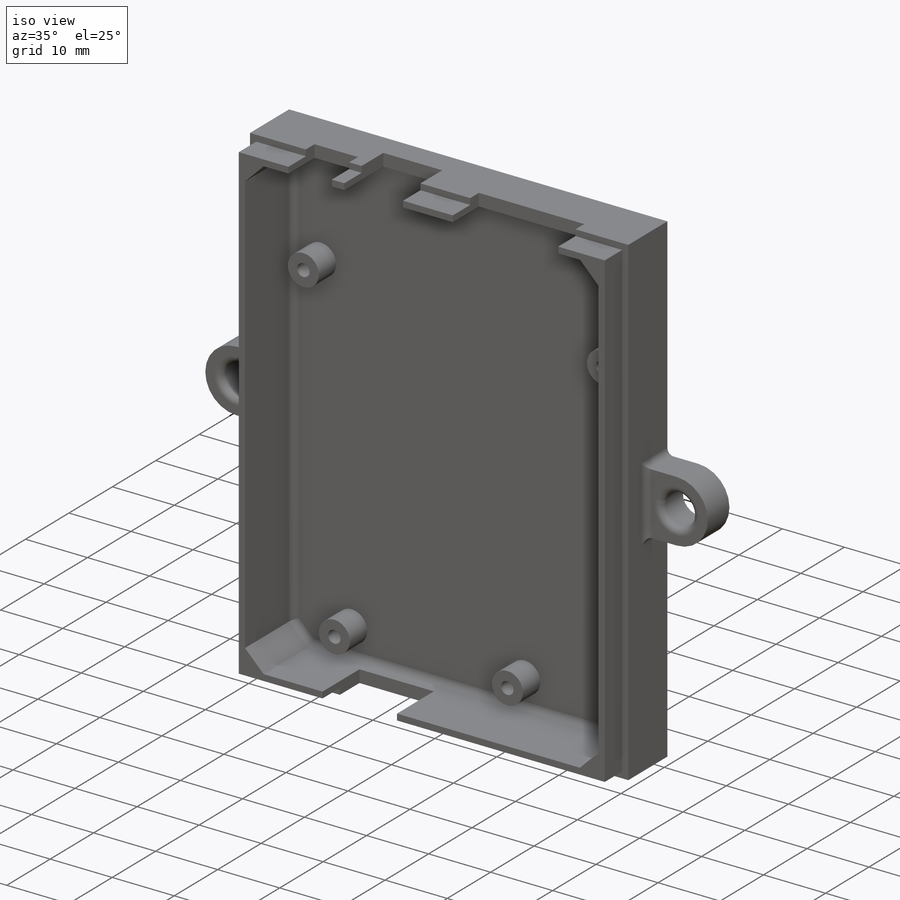
[diagram: iso view]
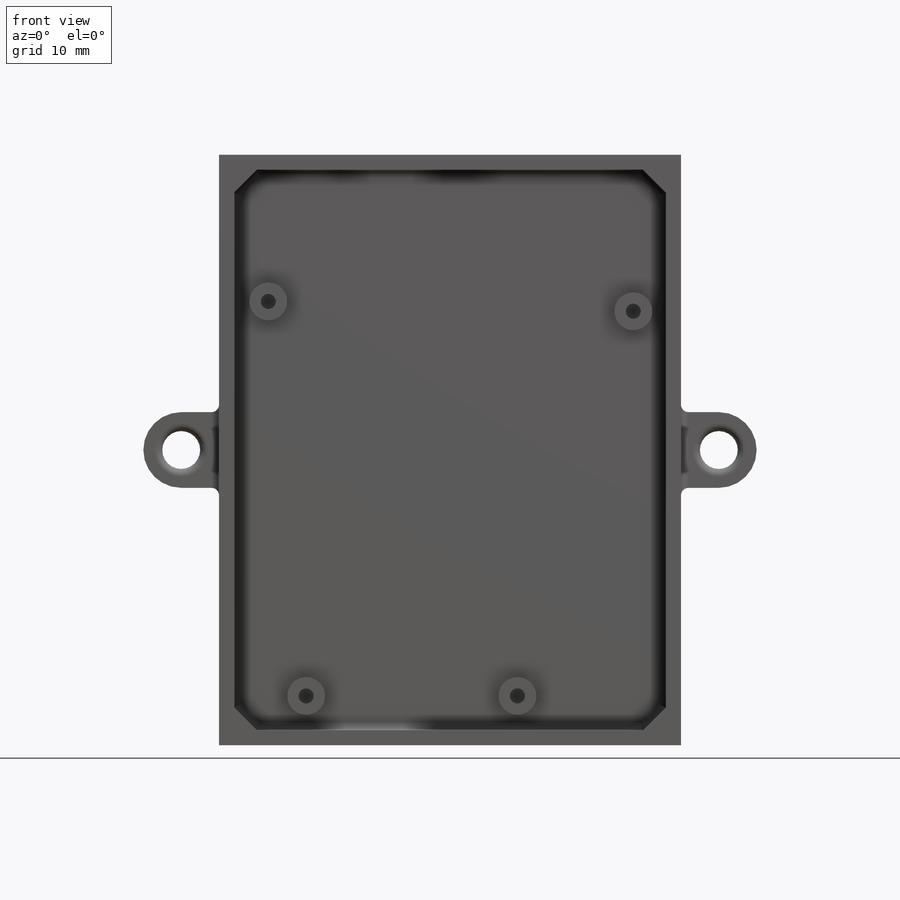
[diagram: front view]
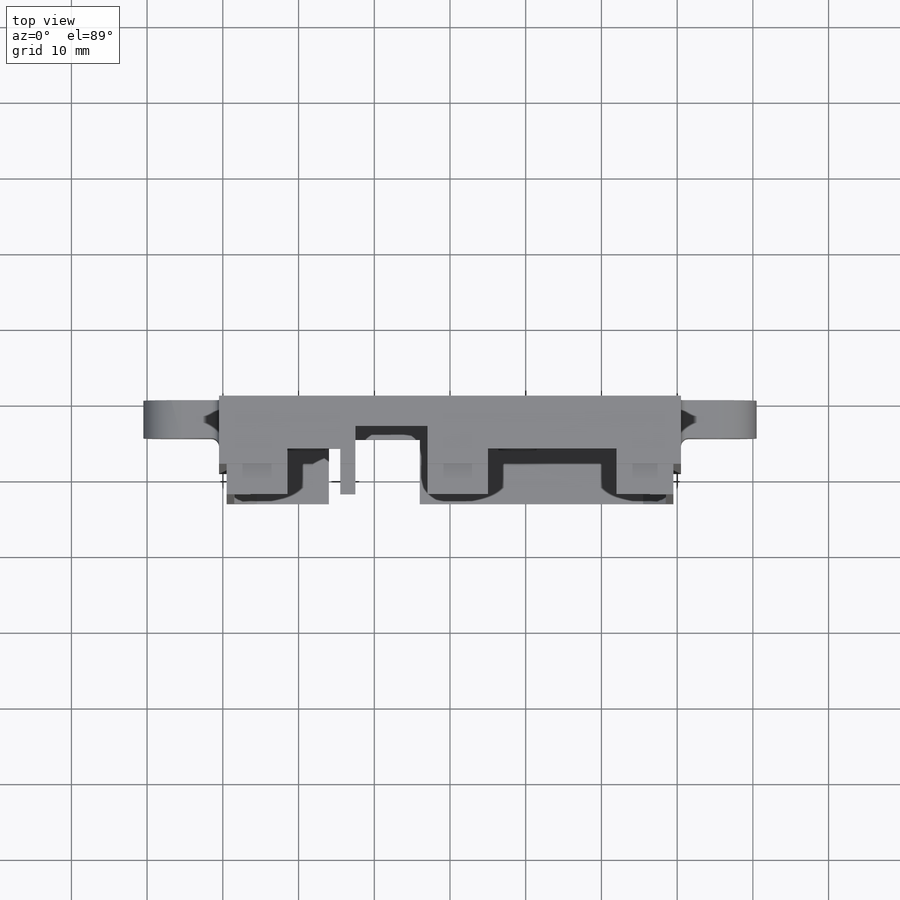
[diagram: top view]
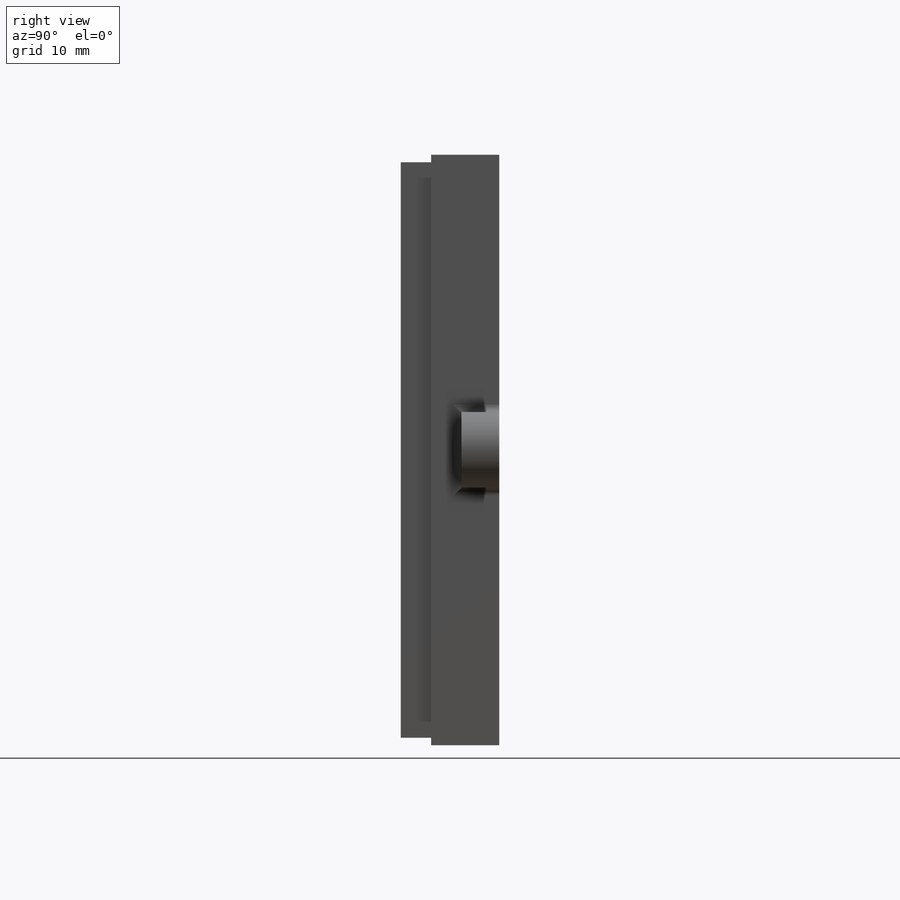
[diagram: right view]
SOLIDWORKS PART (.sldprt)
format: sldprt  version: not decoded by parser v0  size: 432,128 bytes
history: native  units: mm
features: sketch x9, extrude x5, cut_extrude x4, plane x3, fillet x3, material x1, chamfer x1 (+10 scaffold rows collapsed)
feature tree (36):
  scaffold x10  (default folders/planes/origin — collapsed)
  material  "Matériau <non spécifié>"
  plane  "Plan de face"
  plane  "Plan de dessus"
  plane  "Plan de droite"
  sketch  "Esquisse1"  dims[D1=61.0mm D2=78.0mm]
  extrude  "Boss.-Extru.1"  Depth=2mm
  sketch  "Esquisse2"  dims[D1=2.0mm D2=2.0mm D3=2.0mm D4=2.0mm]
  extrude  "Boss.-Extru.2"  Depth=7mm
  sketch  "Esquisse3"  dims[D1=1.0mm D2=1.0mm D3=1.0mm D4=1.0mm]
  extrude  "Boss.-Extru.3"  Depth=4mm
  sketch  "Esquisse4"  dims[c1.D1=5.0mm c1.D2=27.9mm c1.D3=48.2mm c1.D4=17.0mm c1.D5=~17.049935mm c2.D5=90.0deg c3.D5=4.5mm c3.D6=4.5mm c3.D7=9.5mm c3.D8=20.0mm c3.D4=52.1mm c4.D8=50.8mm c4.D3=48.2mm]
  extrude  "Boss.-Extru.4"  Depth=4mm
  sketch  "Esquisse5"  dims[D1=2.0mm]
  sketch  "Esquisse6"  dims[D1=12.0mm D2=20.0mm D3=4.5mm D4=14.5mm]
  cut_extrude  "Enlèv. mat.-Extru.1"  Depth=3mm
  sketch  "Esquisse7"  dims[D1=7.0mm D2=9.5mm D3=17.0mm D4=7.0mm D5=7.0mm D6=4.0mm D7=20.0mm D8=8.5mm D9=9.0mm D10=18.0mm]
  cut_extrude  "Enlèv. mat.-Extru.2"  Depth=3mm
  cut_extrude  "Enlèv. mat.-Extru.3"  Depth=4mm
  chamfer  "Chanfrein1"  Distance=3mm Angle=45deg
  sketch  "Esquisse8"  dims[D1=5.0mm D2=10.0mm]
  extrude  "Boss.-Extru.5"  Depth=5mm
  sketch  "Esquisse9"  dims[D1=5.0mm]
  cut_extrude  "Enlèv. mat.-Extru.4"  [1 undecoded]
  fillet  "Congé1"  Radius=1mm
  fillet  "Congé2"  Radius=1mm
  fillet  "Congé3"  Radius=1mm
decode coverage: 21 of 22 modeling features carry decoded parameters
note: ~ marks probable driven/reference dimensions
note: 1 parameter value undecoded
note: suppression state not decoded; provenance and decode notes live in map.json
